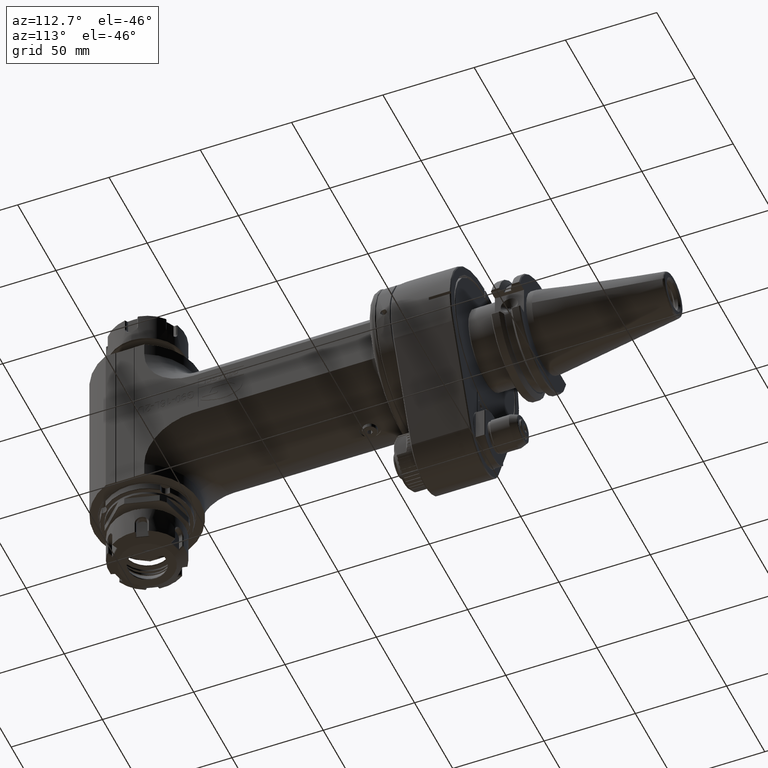
[diagram: clean part render]
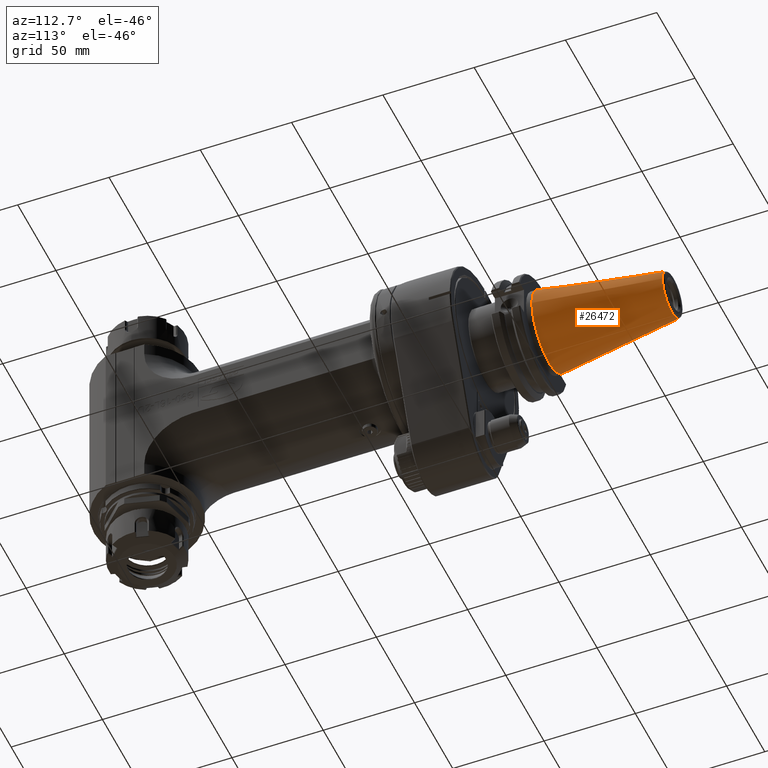
[diagram: same view with one face highlighted and labeled with its STEP entity id]
A machine part, auxiliary view. The second image highlights one B-rep face of the part: STEP entity #26472.
In plain terms, the highlighted conical surface has half-angle 8.3 deg.
Its self-contained STEP definition (entity closure, byte-faithful):
#882=CONICAL_SURFACE('',#29196,17.31065452764,0.144862327915529);
#3392=LINE('',#55205,#5324);
#5324=VECTOR('',#36366,17.31065452764);
#7286=FACE_OUTER_BOUND('',#8946,.T.);
#8946=EDGE_LOOP('',(#24236,#24237,#24238,#24239,#24240,#24241));
#10061=CIRCLE('',#29194,22.225);
#10062=CIRCLE('',#29195,22.225);
#10063=CIRCLE('',#29197,12.39630905528);
#10064=CIRCLE('',#29198,12.39630905528);
#12633=VERTEX_POINT('',#55198);
#12634=VERTEX_POINT('',#55199);
#12635=VERTEX_POINT('',#55204);
#12636=VERTEX_POINT('',#55206);
#16503=EDGE_CURVE('',#12633,#12634,#10061,.T.);
#16505=EDGE_CURVE('',#12634,#12633,#10062,.T.);
#16506=EDGE_CURVE('',#12633,#12635,#3392,.T.);
#16507=EDGE_CURVE('',#12635,#12636,#10063,.T.);
#16508=EDGE_CURVE('',#12636,#12635,#10064,.T.);
#24236=ORIENTED_EDGE('',*,*,#16503,.F.);
#24237=ORIENTED_EDGE('',*,*,#16506,.T.);
#24238=ORIENTED_EDGE('',*,*,#16507,.T.);
#24239=ORIENTED_EDGE('',*,*,#16508,.T.);
#24240=ORIENTED_EDGE('',*,*,#16506,.F.);
#24241=ORIENTED_EDGE('',*,*,#16505,.F.);
#26472=ADVANCED_FACE('',(#7286),#882,.T.);
#29194=AXIS2_PLACEMENT_3D('',#55200,#36359,#36360);
#29195=AXIS2_PLACEMENT_3D('',#55202,#36362,#36363);
#29196=AXIS2_PLACEMENT_3D('',#55203,#36364,#36365);
#29197=AXIS2_PLACEMENT_3D('',#55207,#36367,#36368);
#29198=AXIS2_PLACEMENT_3D('',#55208,#36369,#36370);
#36359=DIRECTION('center_axis',(0.,-1.,0.));
#36360=DIRECTION('ref_axis',(-1.,0.,0.));
#36362=DIRECTION('center_axis',(0.,-1.,0.));
#36363=DIRECTION('ref_axis',(-1.,0.,0.));
#36364=DIRECTION('center_axis',(0.,-1.,0.));
#36365=DIRECTION('ref_axis',(-1.,0.,0.));
#36366=DIRECTION('',(-0.144356201000973,0.989525789068969,-1.76785359492914E-17));
#36367=DIRECTION('center_axis',(0.,-1.,0.));
#36368=DIRECTION('ref_axis',(1.,0.,2.949518067144E-12));
#36369=DIRECTION('center_axis',(0.,-1.,0.));
#36370=DIRECTION('ref_axis',(1.,0.,2.949518067144E-12));
#55198=CARTESIAN_POINT('',(22.225,67.9999999999999,3.277788040989E-11));
#55199=CARTESIAN_POINT('',(-22.225,67.9999999999998,2.72177751110499E-15));
#55200=CARTESIAN_POINT('Origin',(0.,67.9999999999998,0.));
#55202=CARTESIAN_POINT('Origin',(0.,67.9999999999998,0.));
#55203=CARTESIAN_POINT('Origin',(0.,101.6866137206,0.));
#55204=CARTESIAN_POINT('',(12.3963090552815,135.3732274412,1.51811002057918E-15));
#55205=CARTESIAN_POINT('',(17.31065452764,101.6866137206,2.119943765842E-15));
#55206=CARTESIAN_POINT('',(12.39538385673,135.3732274412,0.1514504484024));
#55207=CARTESIAN_POINT('Origin',(0.,135.3732274412,0.));
#55208=CARTESIAN_POINT('Origin',(0.,135.3732274412,0.));